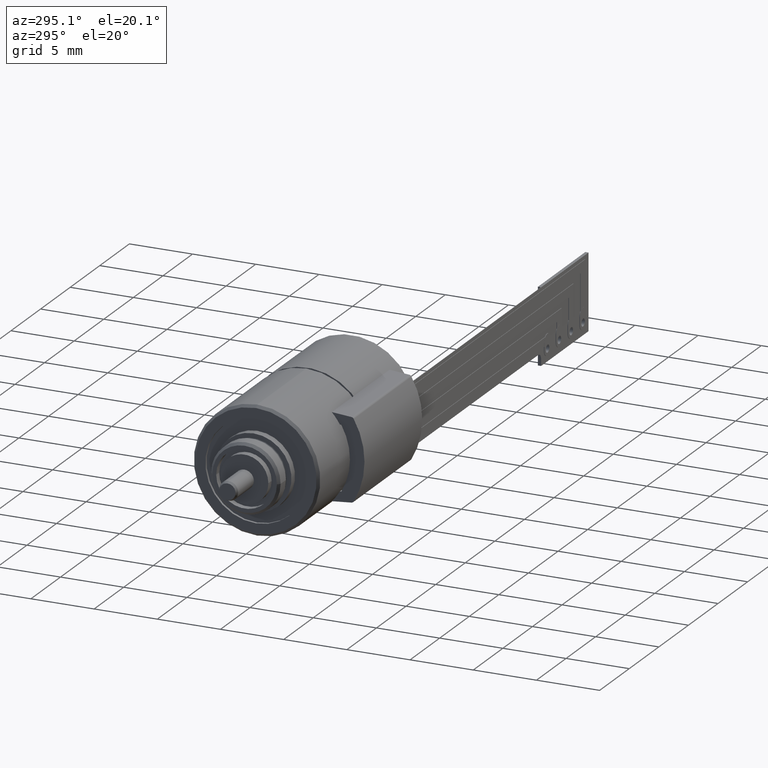
[diagram: clean part render]
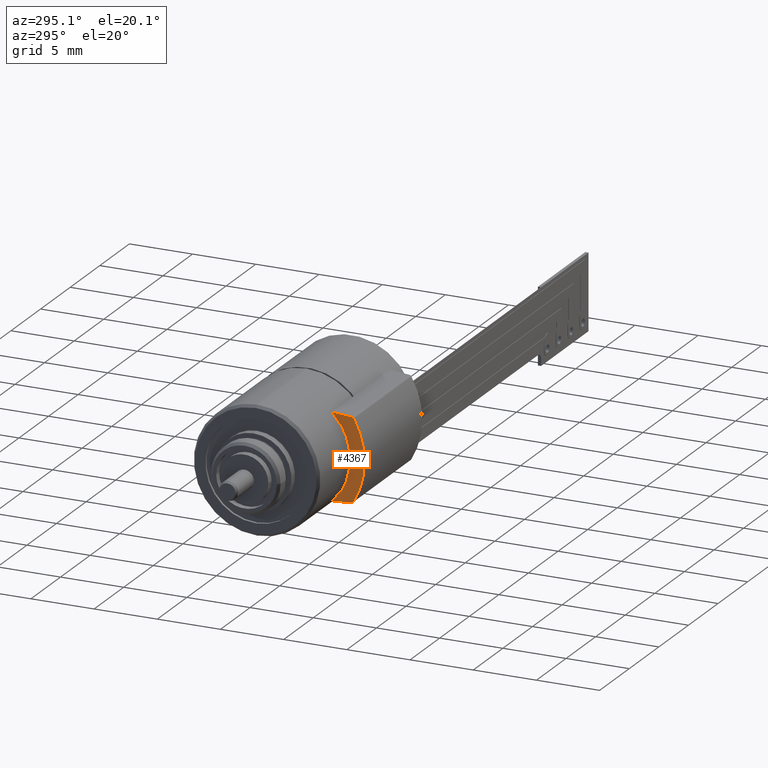
[diagram: same view with one face highlighted and labeled with its STEP entity id]
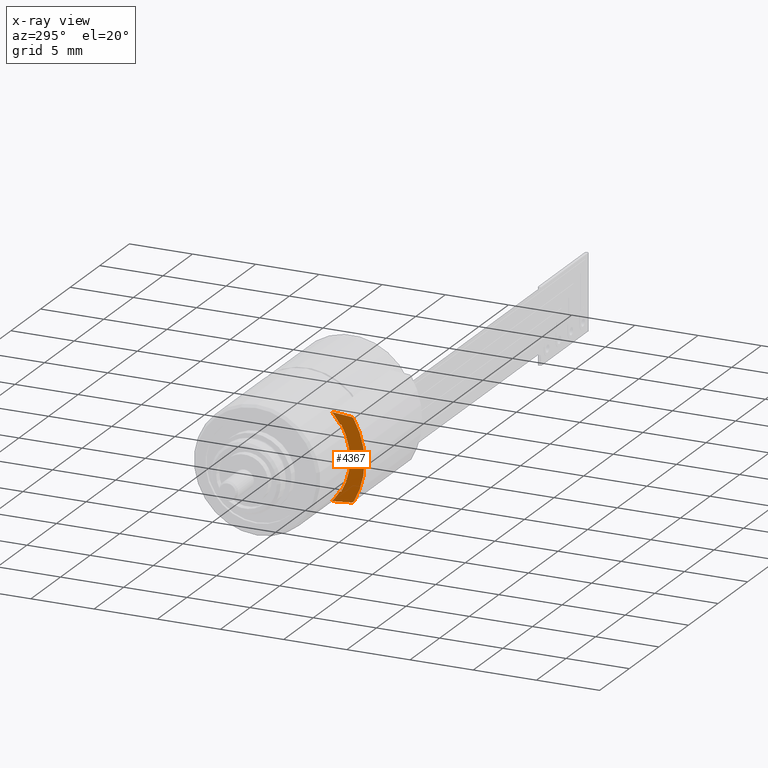
[diagram: x-ray of the same camera — body ghosted, the highlighted face saturated]
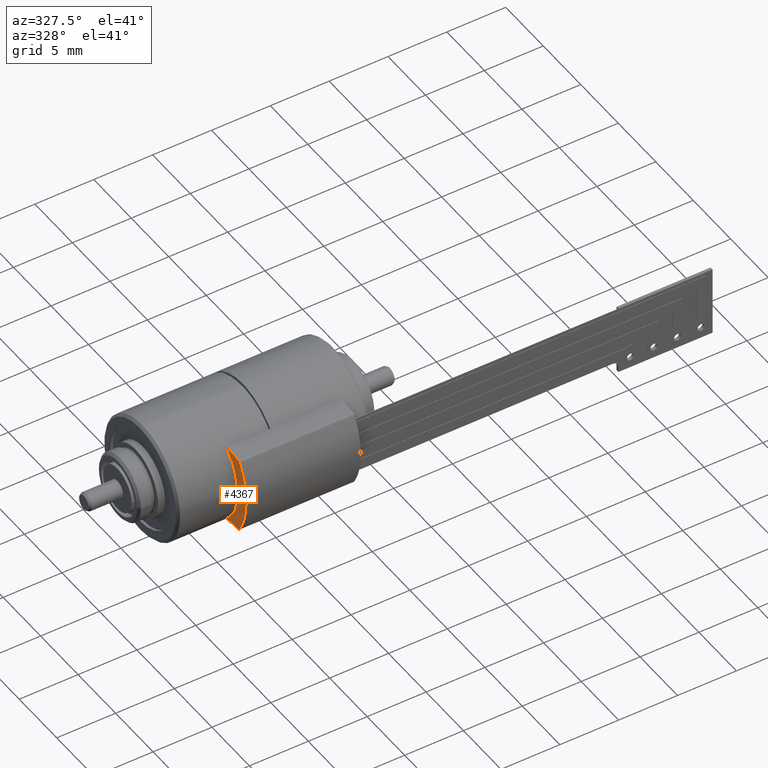
[diagram: same view with one face highlighted and labeled with its STEP entity id]
A machine part, auxiliary view. The second image highlights one B-rep face of the part: STEP entity #4367.
The next image is the same camera in x-ray: the body ghosted, the highlighted face saturated — about 0% of this face is hidden behind the body in this view.
A second angle (auxiliary view) of the same face is appended — the face is thin or edge-on in the first view.
In plain terms, the highlighted planar face has unit normal (1, 0, 0).
Its self-contained STEP definition (entity closure, byte-faithful):
#3894=DIRECTION('',(-9.961946980918E-1,8.715574274751E-2,0.E0));
#3895=VECTOR('',#3894,1.574371084514E0);
#3896=CARTESIAN_POINT('',(5.234440683186E0,3.262784518769E0,
-5.854576083190E-14));
#3897=LINE('',#3896,#3895);
#3898=CARTESIAN_POINT('',(1.203135204749E-14,1.835011829311E-14,
-8.348877145181E-14));
#3899=DIRECTION('',(0.E0,0.E0,-1.E0));
#3900=DIRECTION('',(7.332121111929E-1,6.8E-1,0.E0));
#3901=AXIS2_PLACEMENT_3D('',#3898,#3899,#3900);
#3903=CARTESIAN_POINT('',(1.203135204749E-14,1.835011829311E-14,
-8.348877145181E-14));
#3904=DIRECTION('',(0.E0,0.E0,-1.E0));
#3905=DIRECTION('',(8.660254037844E-1,5.E-1,0.E0));
#3906=AXIS2_PLACEMENT_3D('',#3903,#3904,#3905);
#3908=CARTESIAN_POINT('',(1.203135204749E-14,1.835011829311E-14,
-8.348877145181E-14));
#3909=DIRECTION('',(0.E0,0.E0,-1.E0));
#3910=DIRECTION('',(1.E0,0.E0,0.E0));
#3911=AXIS2_PLACEMENT_3D('',#3908,#3909,#3910);
#3913=DIRECTION('',(-1.E0,1.571555489133E-13,0.E0));
#3914=VECTOR('',#3913,1.158575546950E-1);
#3915=CARTESIAN_POINT('',(4.416729559301E0,-2.55E0,-8.341475658350E-14));
#3916=LINE('',#3915,#3914);
#3917=CARTESIAN_POINT('',(1.203135204749E-14,1.835011829311E-14,
-8.348877145181E-14));
#3918=DIRECTION('',(0.E0,0.E0,-1.E0));
#3919=DIRECTION('',(8.601744009211E-1,-5.1E-1,0.E0));
#3920=AXIS2_PLACEMENT_3D('',#3917,#3918,#3919);
#3922=DIRECTION('',(9.961946980918E-1,8.715574274748E-2,0.E0));
#3923=VECTOR('',#3922,1.574371084515E0);
#3924=CARTESIAN_POINT('',(3.666060555965E0,-3.4E0,-8.045416185117E-14));
#3925=LINE('',#3924,#3923);
#3926=CARTESIAN_POINT('',(5.217009534635E0,-3.063545579151E0,
-9.769962616701E-14));
#3927=DIRECTION('',(0.E0,0.E0,1.E0));
#3928=DIRECTION('',(8.715574277648E-2,-9.961946980892E-1,0.E0));
#3929=AXIS2_PLACEMENT_3D('',#3926,#3927,#3928);
#3931=CARTESIAN_POINT('',(1.203135204749E-14,1.835011829311E-14,
-8.348877145181E-14));
#3932=DIRECTION('',(0.E0,0.E0,1.E0));
#3933=DIRECTION('',(8.623156255585E-1,-5.063711701091E-1,0.E0));
#3934=AXIS2_PLACEMENT_3D('',#3931,#3932,#3933);
#3936=CARTESIAN_POINT('',(1.203135204749E-14,1.835011829311E-14,
-8.348877145181E-14));
#3937=DIRECTION('',(0.E0,0.E0,1.E0));
#3938=DIRECTION('',(1.E0,0.E0,0.E0));
#3939=AXIS2_PLACEMENT_3D('',#3936,#3937,#3938);
#3941=CARTESIAN_POINT('',(5.217009534634E0,3.063545579151E0,
-4.085620730621E-14));
#3942=DIRECTION('',(0.E0,0.E0,1.E0));
#3943=DIRECTION('',(8.623156255701E-1,5.063711700893E-1,0.E0));
#3944=AXIS2_PLACEMENT_3D('',#3941,#3942,#3943);
#4054=DIRECTION('',(-1.E0,0.E0,0.E0));
#4055=VECTOR('',#4054,1.158575546951E-1);
#4056=CARTESIAN_POINT('',(4.416729559301E0,2.55E0,-8.282263763704E-14));
#4057=LINE('',#4056,#4055);
#4236=CARTESIAN_POINT('',(3.666060555965E0,3.4E0,-8.348877145181E-14));
#4237=CARTESIAN_POINT('',(4.300872004606E0,2.55E0,-8.348877145181E-14));
#4238=VERTEX_POINT('',#4236);
#4239=VERTEX_POINT('',#4237);
#4244=CARTESIAN_POINT('',(5.234440683186E0,3.262784518769E0,
-5.854576083190E-14));
#4245=VERTEX_POINT('',#4244);
#4246=CARTESIAN_POINT('',(4.416729559301E0,2.55E0,-8.282263763704E-14));
#4247=VERTEX_POINT('',#4246);
#4248=CARTESIAN_POINT('',(5.1E0,6.764402058647E-14,-8.348877145181E-14));
#4249=VERTEX_POINT('',#4248);
#4250=CARTESIAN_POINT('',(4.416729559301E0,-2.55E0,-8.348877145181E-14));
#4251=VERTEX_POINT('',#4250);
#4252=CARTESIAN_POINT('',(4.300872004606E0,-2.55E0,-8.341475658350E-14));
#4253=VERTEX_POINT('',#4252);
#4254=CARTESIAN_POINT('',(3.666060555965E0,-3.4E0,-8.348877145181E-14));
#4255=VERTEX_POINT('',#4254);
#4256=CARTESIAN_POINT('',(5.234440683188E0,-3.262784518769E0,
-8.519111342290E-14));
#4257=VERTEX_POINT('',#4256);
#4258=CARTESIAN_POINT('',(5.389472659741E0,-3.164819813182E0,
-9.769962616701E-14));
#4259=VERTEX_POINT('',#4258);
#4260=CARTESIAN_POINT('',(6.25E0,1.035651251581E-14,-8.348877145181E-14));
#4261=VERTEX_POINT('',#4260);
#4262=CARTESIAN_POINT('',(5.389472659748E0,3.164819813169E0,
-8.348877145181E-14));
#4263=VERTEX_POINT('',#4262);
#4337=CARTESIAN_POINT('',(1.387778780781E-14,0.E0,-8.326672684689E-14));
#4338=DIRECTION('',(0.E0,0.E0,1.E0));
#4339=DIRECTION('',(1.E0,0.E0,0.E0));
#4340=AXIS2_PLACEMENT_3D('',#4337,#4338,#4339);
#4341=PLANE('',#4340);
#4343=ORIENTED_EDGE('',*,*,#4342,.T.);
#4344=ORIENTED_EDGE('',*,*,#4326,.T.);
#4346=ORIENTED_EDGE('',*,*,#4345,.F.);
#4348=ORIENTED_EDGE('',*,*,#4347,.T.);
#4350=ORIENTED_EDGE('',*,*,#4349,.T.);
#4352=ORIENTED_EDGE('',*,*,#4351,.T.);
#4354=ORIENTED_EDGE('',*,*,#4353,.T.);
#4356=ORIENTED_EDGE('',*,*,#4355,.T.);
#4358=ORIENTED_EDGE('',*,*,#4357,.T.);
#4360=ORIENTED_EDGE('',*,*,#4359,.T.);
#4362=ORIENTED_EDGE('',*,*,#4361,.T.);
#4364=ORIENTED_EDGE('',*,*,#4363,.T.);
#4365=EDGE_LOOP('',(#4343,#4344,#4346,#4348,#4350,#4352,#4354,#4356,#4358,#4360,
#4362,#4364));
#4366=FACE_OUTER_BOUND('',#4365,.F.);
#4367=ADVANCED_FACE('',(#4366),#4341,.F.);
#3902=CIRCLE('',#3901,5.E0);
#3907=CIRCLE('',#3906,5.1E0);
#3912=CIRCLE('',#3911,5.1E0);
#3921=CIRCLE('',#3920,5.E0);
#3930=CIRCLE('',#3929,2.E-1);
#3935=CIRCLE('',#3934,6.25E0);
#3940=CIRCLE('',#3939,6.25E0);
#3945=CIRCLE('',#3944,2.E-1);
#4326=EDGE_CURVE('',#4238,#4239,#3902,.T.);
#4342=EDGE_CURVE('',#4245,#4238,#3897,.T.);
#4345=EDGE_CURVE('',#4247,#4239,#4057,.T.);
#4347=EDGE_CURVE('',#4247,#4249,#3907,.T.);
#4349=EDGE_CURVE('',#4249,#4251,#3912,.T.);
#4351=EDGE_CURVE('',#4251,#4253,#3916,.T.);
#4353=EDGE_CURVE('',#4253,#4255,#3921,.T.);
#4355=EDGE_CURVE('',#4255,#4257,#3925,.T.);
#4357=EDGE_CURVE('',#4257,#4259,#3930,.T.);
#4359=EDGE_CURVE('',#4259,#4261,#3935,.T.);
#4361=EDGE_CURVE('',#4261,#4263,#3940,.T.);
#4363=EDGE_CURVE('',#4263,#4245,#3945,.T.);